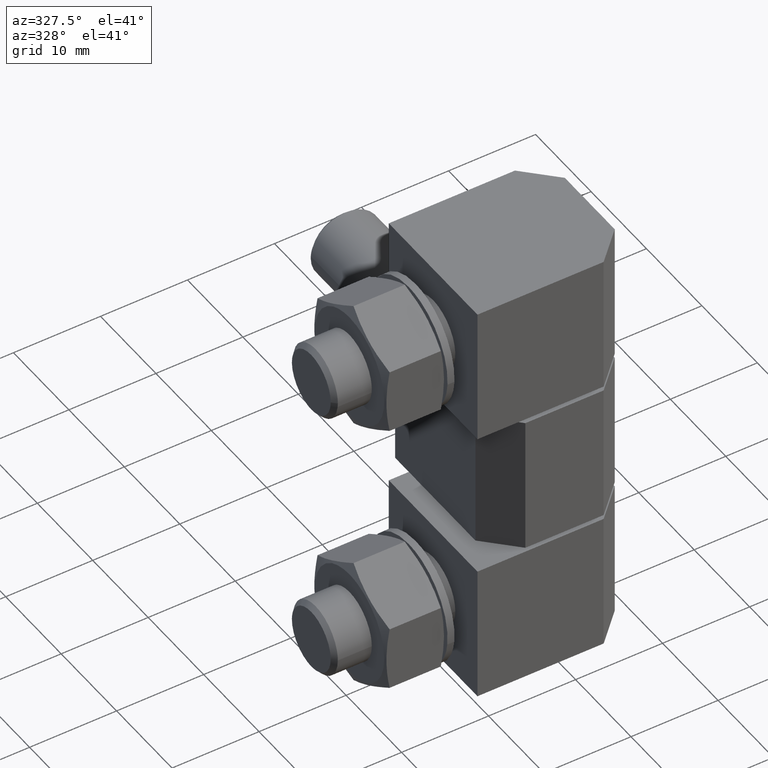
[diagram: clean part render]
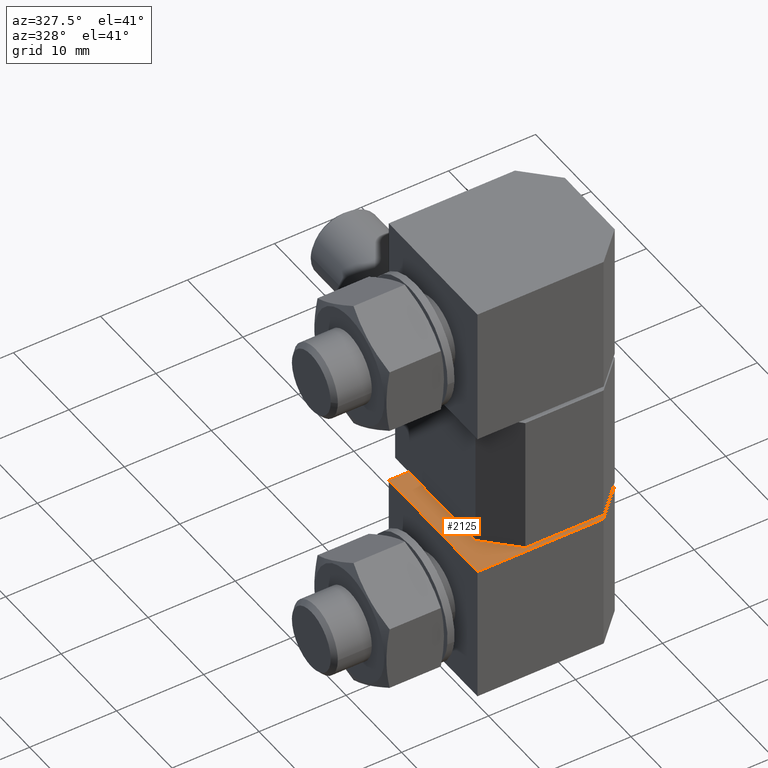
[diagram: same view with one face highlighted and labeled with its STEP entity id]
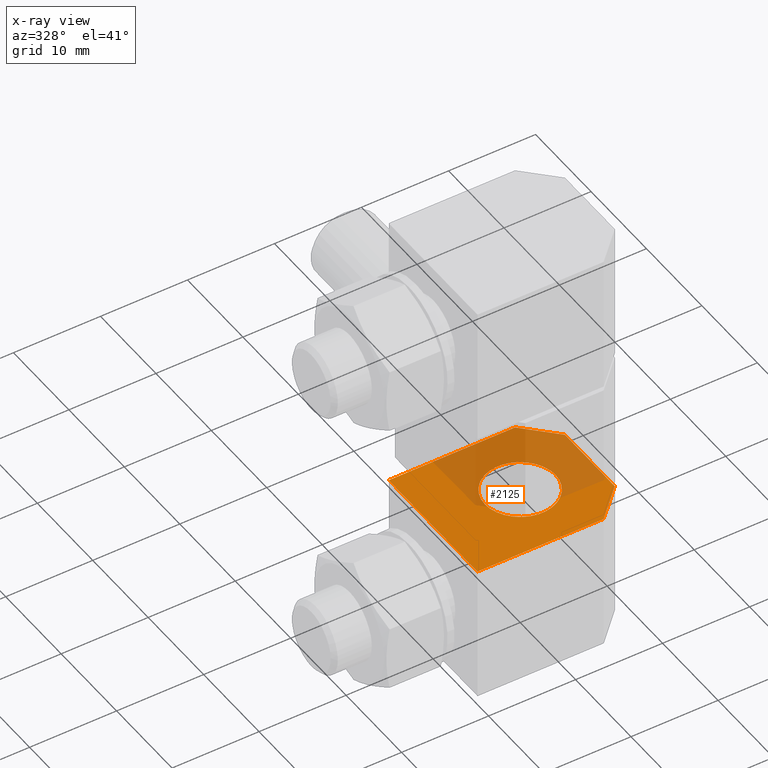
[diagram: x-ray of the same camera — body ghosted, the highlighted face saturated]
A machine part, auxiliary view. The second image highlights one B-rep face of the part: STEP entity #2125.
The next image is the same camera in x-ray: the body ghosted, the highlighted face saturated — about 38% of this face is hidden behind the body in this view.
In plain terms, the highlighted face is a freeform B-spline surface patch.
Its self-contained STEP definition (entity closure, byte-faithful):
#1399=CARTESIAN_POINT('',(0.317759337750648,-4.037515201615006,16.000000759959200));
#1400=VERTEX_POINT('',#1399);
#1406=CARTESIAN_POINT('',(4.050000000000000,0.0,16.000000759959200));
#1407=VERTEX_POINT('',#1406);
#1408=CARTESIAN_POINT('',(4.050000000000000,0.0,16.000000759959200));
#1409=CARTESIAN_POINT('',(4.049999999999999,-3.743781491117377,16.000000759959196));
#1410=CARTESIAN_POINT('',(0.317759337750648,-4.037515201615006,16.000000759959200));
#1418=(BOUNDED_CURVE()B_SPLINE_CURVE(2,(#1408,#1409,#1410),.UNSPECIFIED.,.F.,.U.)B_SPLINE_CURVE_WITH_KNOTS((3,3),(0.0,0.236331300628277),.UNSPECIFIED.)CURVE()GEOMETRIC_REPRESENTATION_ITEM()RATIONAL_B_SPLINE_CURVE((1.0,0.723120658610457,0.969723356162445))REPRESENTATION_ITEM(''));
#1419=EDGE_CURVE('',#1407,#1400,#1418,.T.);
#1421=CARTESIAN_POINT('',(-0.317759337750649,4.037515201615006,16.000000759959200));
#1422=VERTEX_POINT('',#1421);
#1423=CARTESIAN_POINT('',(-0.317759337750649,4.037515201615006,16.000000759959200));
#1424=CARTESIAN_POINT('',(-0.159124933434183,4.050000000000000,16.000000759959196));
#1425=CARTESIAN_POINT('',(0.0,4.050000000000000,16.000000759959200));
#1426=CARTESIAN_POINT('',(4.050000000000001,4.050000000000001,16.000000759959192));
#1427=CARTESIAN_POINT('',(4.050000000000000,0.0,16.000000759959200));
#1435=(BOUNDED_CURVE()B_SPLINE_CURVE(2,(#1423,#1424,#1425,#1426,#1427),.UNSPECIFIED.,.F.,.U.)B_SPLINE_CURVE_WITH_KNOTS((3,2,3),(0.736331300628277,0.750000000000000,1.0),.UNSPECIFIED.)CURVE()GEOMETRIC_REPRESENTATION_ITEM()RATIONAL_B_SPLINE_CURVE((0.969723356162445,0.983986122576090,1.0,0.707106781186548,1.0))REPRESENTATION_ITEM(''));
#1436=EDGE_CURVE('',#1422,#1407,#1435,.T.);
#1512=CARTESIAN_POINT('',(-4.050000000000000,0.0,16.000000759959200));
#1513=VERTEX_POINT('',#1512);
#1514=CARTESIAN_POINT('',(-4.050000000000000,0.0,16.000000759959200));
#1515=CARTESIAN_POINT('',(-4.049999999999998,3.743781491117365,16.000000759959196));
#1516=CARTESIAN_POINT('',(-0.317759337750649,4.037515201615006,16.000000759959200));
#1524=(BOUNDED_CURVE()B_SPLINE_CURVE(2,(#1514,#1515,#1516),.UNSPECIFIED.,.F.,.U.)B_SPLINE_CURVE_WITH_KNOTS((3,3),(0.500000000000000,0.736331300628276),.UNSPECIFIED.)CURVE()GEOMETRIC_REPRESENTATION_ITEM()RATIONAL_B_SPLINE_CURVE((1.0,0.723120658610458,0.969723356162444))REPRESENTATION_ITEM(''));
#1525=EDGE_CURVE('',#1513,#1422,#1524,.T.);
#1527=CARTESIAN_POINT('',(0.317759337750648,-4.037515201615006,16.000000759959200));
#1528=CARTESIAN_POINT('',(0.159124933434183,-4.049999999999999,16.000000759959192));
#1529=CARTESIAN_POINT('',(0.0,-4.050000000000000,16.000000759959200));
#1530=CARTESIAN_POINT('',(-4.050000000000001,-4.050000000000001,16.000000759959192));
#1531=CARTESIAN_POINT('',(-4.050000000000000,0.0,16.000000759959200));
#1539=(BOUNDED_CURVE()B_SPLINE_CURVE(2,(#1527,#1528,#1529,#1530,#1531),.UNSPECIFIED.,.F.,.U.)B_SPLINE_CURVE_WITH_KNOTS((3,2,3),(0.236331300628277,0.250000000000000,0.500000000000000),.UNSPECIFIED.)CURVE()GEOMETRIC_REPRESENTATION_ITEM()RATIONAL_B_SPLINE_CURVE((0.969723356162445,0.983986122576091,1.0,0.707106781186548,1.0))REPRESENTATION_ITEM(''));
#1540=EDGE_CURVE('',#1400,#1513,#1539,.T.);
#1974=CARTESIAN_POINT('',(-10.000000474974501,8.000000379979619,16.000000759959200));
#1975=VERTEX_POINT('',#1974);
#1981=CARTESIAN_POINT('',(4.500000213738500,8.000000379979619,16.000000759959200));
#1982=VERTEX_POINT('',#1981);
#1983=CARTESIAN_POINT('',(4.500000213738500,8.000000379979619,16.000000759959200));
#1984=CARTESIAN_POINT('',(-10.000000474974501,8.000000379979619,16.000000759959200));
#1985=QUASI_UNIFORM_CURVE('',1,(#1983,#1984),.UNSPECIFIED.,.F.,.U.);
#1986=EDGE_CURVE('',#1982,#1975,#1985,.T.);
#2003=CARTESIAN_POINT('',(8.000000379979641,4.500000213738500,16.000000759959200));
#2004=VERTEX_POINT('',#2003);
#2005=CARTESIAN_POINT('',(8.000000379979641,4.500000213738500,16.000000759959200));
#2006=CARTESIAN_POINT('',(4.500000213738500,8.000000379979619,16.000000759959200));
#2007=QUASI_UNIFORM_CURVE('',1,(#2005,#2006),.UNSPECIFIED.,.F.,.U.);
#2008=EDGE_CURVE('',#2004,#1982,#2007,.T.);
#2025=CARTESIAN_POINT('',(8.000000379979710,-4.500000213738519,16.000000759959200));
#2026=VERTEX_POINT('',#2025);
#2027=CARTESIAN_POINT('',(8.000000379979710,-4.500000213738519,16.000000759959200));
#2028=CARTESIAN_POINT('',(8.000000379979641,4.500000213738500,16.000000759959200));
#2029=QUASI_UNIFORM_CURVE('',1,(#2027,#2028),.UNSPECIFIED.,.F.,.U.);
#2030=EDGE_CURVE('',#2026,#2004,#2029,.T.);
#2047=CARTESIAN_POINT('',(4.500000213738500,-8.000000379979600,16.000000759959200));
#2048=VERTEX_POINT('',#2047);
#2049=CARTESIAN_POINT('',(4.500000213738500,-8.000000379979600,16.000000759959200));
#2050=CARTESIAN_POINT('',(8.000000379979710,-4.500000213738519,16.000000759959200));
#2051=QUASI_UNIFORM_CURVE('',1,(#2049,#2050),.UNSPECIFIED.,.F.,.U.);
#2052=EDGE_CURVE('',#2048,#2026,#2051,.T.);
#2069=CARTESIAN_POINT('',(-10.000000474974501,-8.000000379979609,16.000000759959200));
#2070=VERTEX_POINT('',#2069);
#2071=CARTESIAN_POINT('',(-10.000000474974501,-8.000000379979609,16.000000759959200));
#2072=CARTESIAN_POINT('',(4.500000213738500,-8.000000379979600,16.000000759959200));
#2073=QUASI_UNIFORM_CURVE('',1,(#2071,#2072),.UNSPECIFIED.,.F.,.U.);
#2074=EDGE_CURVE('',#2070,#2048,#2073,.T.);
#2091=CARTESIAN_POINT('',(-10.000000474974501,8.000000379979619,16.000000759959200));
#2092=CARTESIAN_POINT('',(-10.000000474974501,-8.000000379979609,16.000000759959200));
#2093=QUASI_UNIFORM_CURVE('',1,(#2091,#2092),.UNSPECIFIED.,.F.,.U.);
#2094=EDGE_CURVE('',#1975,#2070,#2093,.T.);
#2106=CARTESIAN_POINT('',(-10.899099911569930,-8.799200029372106,16.000000759959200));
#2107=CARTESIAN_POINT('',(8.899099494710047,-8.799200029372106,16.000000759959200));
#2108=CARTESIAN_POINT('',(-10.899099911569930,8.799199600218655,16.000000759959200));
#2109=CARTESIAN_POINT('',(8.899099494710047,8.799199600218655,16.000000759959200));
#2110=B_SPLINE_SURFACE_WITH_KNOTS('',1,1,((#2106,#2108),(#2107,#2109)),.UNSPECIFIED.,.F.,.F.,.U.,(2,2),(2,2),(0.0,19.798199406279981),(0.0,17.598399629590759),.UNSPECIFIED.);
#2111=ORIENTED_EDGE('',*,*,#2074,.T.);
#2112=ORIENTED_EDGE('',*,*,#2052,.T.);
#2113=ORIENTED_EDGE('',*,*,#2030,.T.);
#2114=ORIENTED_EDGE('',*,*,#2008,.T.);
#2115=ORIENTED_EDGE('',*,*,#1986,.T.);
#2116=ORIENTED_EDGE('',*,*,#2094,.T.);
#2117=EDGE_LOOP('',(#2111,#2112,#2113,#2114,#2115,#2116));
#2118=FACE_OUTER_BOUND('',#2117,.T.);
#2119=ORIENTED_EDGE('',*,*,#1525,.T.);
#2120=ORIENTED_EDGE('',*,*,#1436,.T.);
#2121=ORIENTED_EDGE('',*,*,#1419,.T.);
#2122=ORIENTED_EDGE('',*,*,#1540,.T.);
#2123=EDGE_LOOP('',(#2119,#2120,#2121,#2122));
#2124=FACE_BOUND('',#2123,.T.);
#2125=ADVANCED_FACE('',(#2118,#2124),#2110,.T.);